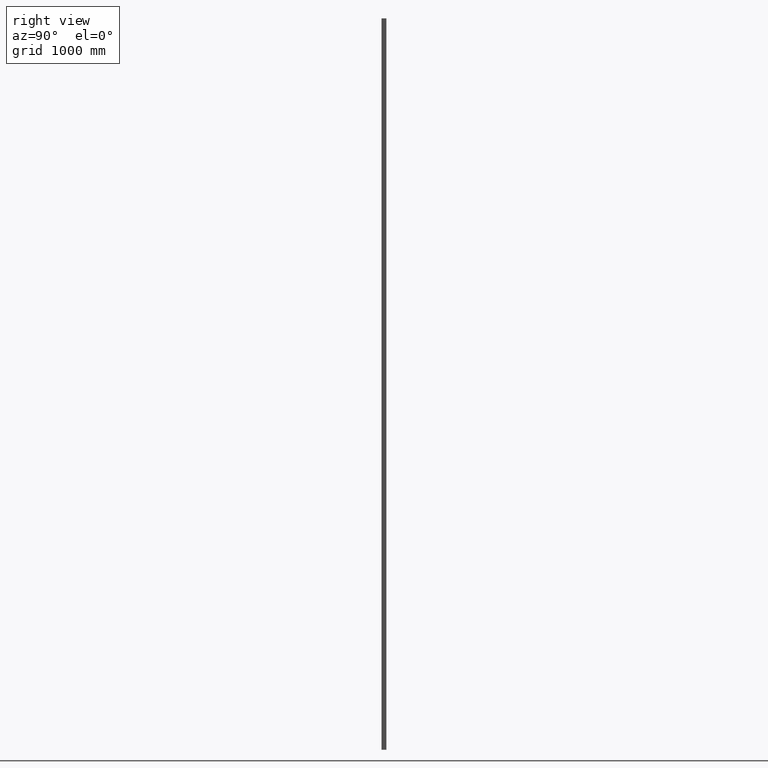
[diagram: clean part render]
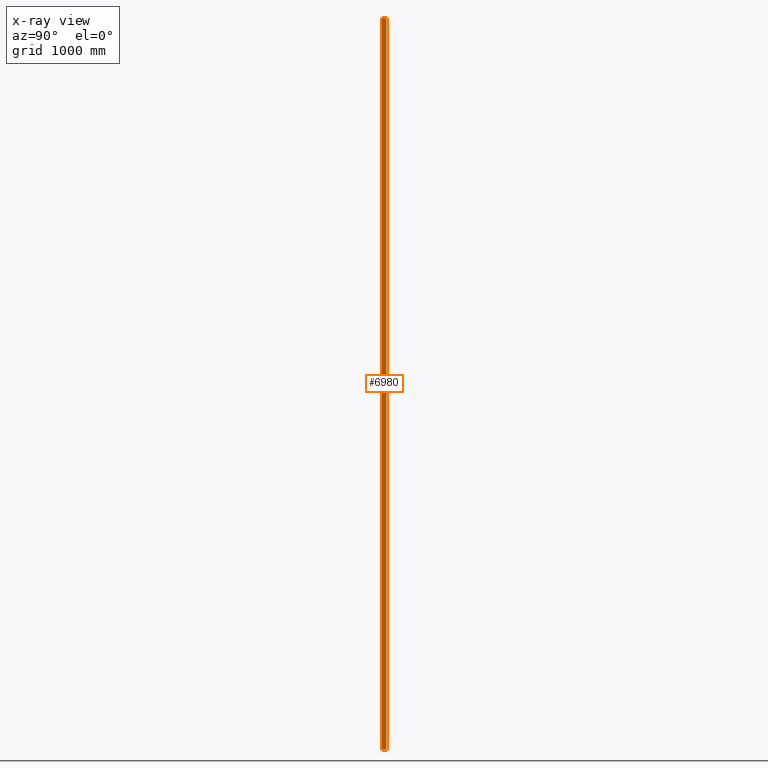
[diagram: x-ray — body ghosted, one internal face saturated and labeled with its STEP entity id]
A machine part, right view, then the same camera in x-ray: the body is ghosted and one INTERNAL B-rep face — a face not visible from any outside direction — is saturated and labeled: STEP entity #6980.
In plain terms, the highlighted planar face has unit normal (1, 0, -0).
Its self-contained STEP definition (entity closure, byte-faithful):
#609 = ORIENTED_EDGE ( 'NONE', *, *, #12037, .F. ) ;
#924 = CARTESIAN_POINT ( 'NONE',  ( -28.50000000000000000, -18.00000000000000711, -3000.000000000000000 ) ) ;
#1047 = CARTESIAN_POINT ( 'NONE',  ( -28.50000000000000355, 17.99999999999999645, -3000.000000000000000 ) ) ;
#1099 = CARTESIAN_POINT ( 'NONE',  ( -28.50000000000000355, 17.99999999999999645, 3000.000000000000000 ) ) ;
#2657 = LINE ( 'NONE', #1047, #15715 ) ;
#2769 = CARTESIAN_POINT ( 'NONE',  ( -28.50000000000000355, 17.99999999999999645, 3000.000000000000000 ) ) ;
#3139 = EDGE_CURVE ( 'NONE', #4209, #14820, #2657, .T. ) ;
#3413 = VECTOR ( 'NONE', #9956, 1000.000000000000000 ) ;
#3773 = DIRECTION ( 'NONE',  ( -0.000000000000000000, -0.000000000000000000, -1.000000000000000000 ) ) ;
#3777 = PLANE ( 'NONE',  #4233 ) ;
#4209 = VERTEX_POINT ( 'NONE', #10616 ) ;
#4233 = AXIS2_PLACEMENT_3D ( 'NONE', #1099, #6300, #6468 ) ;
#4348 = EDGE_CURVE ( 'NONE', #10249, #6677, #16692, .T. ) ;
#4814 = DIRECTION ( 'NONE',  ( 9.637352644315594010E-17, -1.000000000000000000, 0.000000000000000000 ) ) ;
#4986 = EDGE_LOOP ( 'NONE', ( #11866, #609, #12400, #14529 ) ) ;
#5756 = EDGE_CURVE ( 'NONE', #6677, #14820, #11369, .T. ) ;
#6034 = FACE_OUTER_BOUND ( 'NONE', #4986, .T. ) ;
#6165 = DIRECTION ( 'NONE',  ( -0.000000000000000000, -0.000000000000000000, -1.000000000000000000 ) ) ;
#6300 = DIRECTION ( 'NONE',  ( 1.000000000000000000, 9.637352644315594010E-17, -0.000000000000000000 ) ) ;
#6468 = DIRECTION ( 'NONE',  ( -9.637352644315594010E-17, 1.000000000000000000, 0.000000000000000000 ) ) ;
#6673 = VECTOR ( 'NONE', #3773, 1000.000000000000000 ) ;
#6677 = VERTEX_POINT ( 'NONE', #9535 ) ;
#6980 = ADVANCED_FACE ( 'NONE', ( #6034 ), #3777, .T. ) ;
#7862 = VECTOR ( 'NONE', #6165, 1000.000000000000000 ) ;
#8592 = CARTESIAN_POINT ( 'NONE',  ( -28.50000000000000355, 17.99999999999999645, 3000.000000000000000 ) ) ;
#9191 = CARTESIAN_POINT ( 'NONE',  ( -28.50000000000000000, -18.00000000000000711, 3000.000000000000000 ) ) ;
#9535 = CARTESIAN_POINT ( 'NONE',  ( -28.50000000000000000, -18.00000000000000711, 3000.000000000000000 ) ) ;
#9956 = DIRECTION ( 'NONE',  ( 9.637352644315594010E-17, -1.000000000000000000, 0.000000000000000000 ) ) ;
#10249 = VERTEX_POINT ( 'NONE', #2769 ) ;
#10616 = CARTESIAN_POINT ( 'NONE',  ( -28.50000000000000355, 17.99999999999999645, -3000.000000000000000 ) ) ;
#11369 = LINE ( 'NONE', #9191, #6673 ) ;
#11866 = ORIENTED_EDGE ( 'NONE', *, *, #3139, .F. ) ;
#12037 = EDGE_CURVE ( 'NONE', #10249, #4209, #13395, .T. ) ;
#12400 = ORIENTED_EDGE ( 'NONE', *, *, #4348, .T. ) ;
#13395 = LINE ( 'NONE', #8592, #7862 ) ;
#13906 = CARTESIAN_POINT ( 'NONE',  ( -28.50000000000000355, 17.99999999999999645, 3000.000000000000000 ) ) ;
#14529 = ORIENTED_EDGE ( 'NONE', *, *, #5756, .T. ) ;
#14820 = VERTEX_POINT ( 'NONE', #924 ) ;
#15715 = VECTOR ( 'NONE', #4814, 1000.000000000000000 ) ;
#16692 = LINE ( 'NONE', #13906, #3413 ) ;